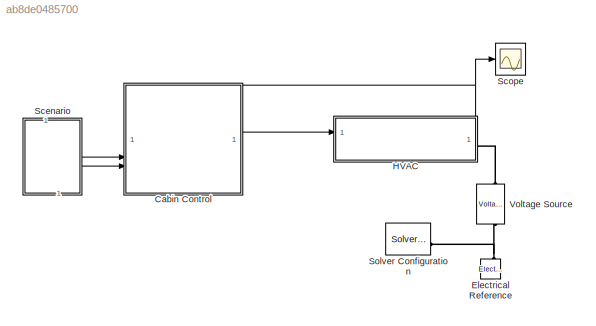
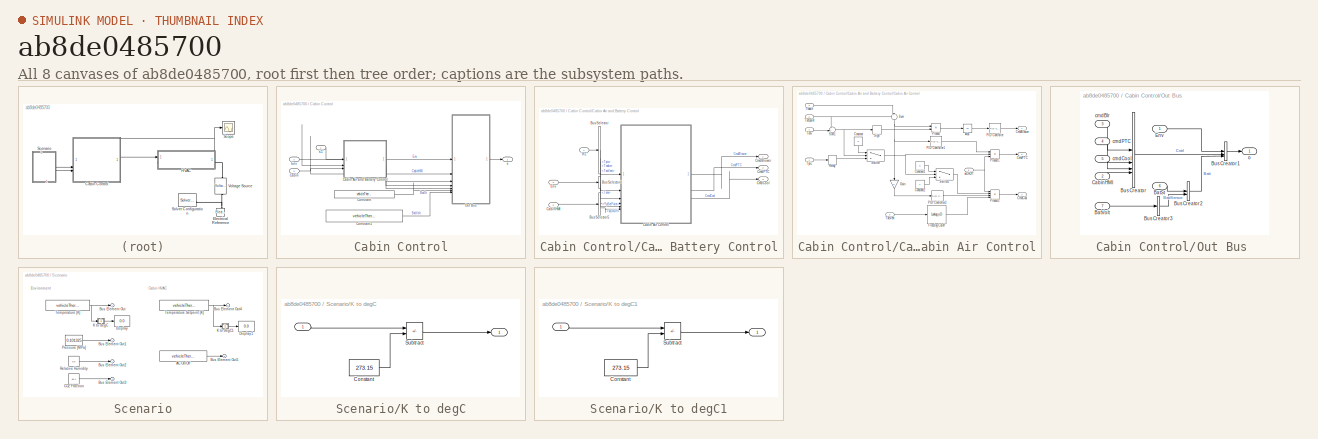
[diagram: thumbnail index - all 8 canvases of the model, root first then tree order]
MODEL slx_ab8de0485700
KIND model
CONFIG AbsTol = auto
CONFIG EnableMultiTasking = off
CONFIG FixedStep = auto
CONFIG MaxStep = auto
CONFIG MinStep = auto
CONFIG PreLoadFcn = % Load all parameters\nHVACTestHarnessParams\n
CONFIG RelTol = 1e-3
CONFIG SampleTimeConstraint = Unconstrained
CONFIG SolverName = daessc
CONFIG StartTime = 0
CONFIG StopTime = 50
BLOCK [SubSystem] Cabin Control
BLOCK [Inport] Cabin Control/Cabin
  Port = 3
BLOCK [SubSystem] Cabin Control/Cabin Air and Battery Control
BLOCK [BusSelector] Cabin Control/Cabin Air and Battery Control/Bus Selector
  OutputSignals = Tptc,Tcabin,TacVent
BLOCK [BusSelector] Cabin Control/Cabin Air and Battery Control/Bus Selector4
  OutputSignals = Tenv
BLOCK [BusSelector] Cabin Control/Cabin Air and Battery Control/Bus Selector5
  OutputSignals = TpSetPoint,acOnOff
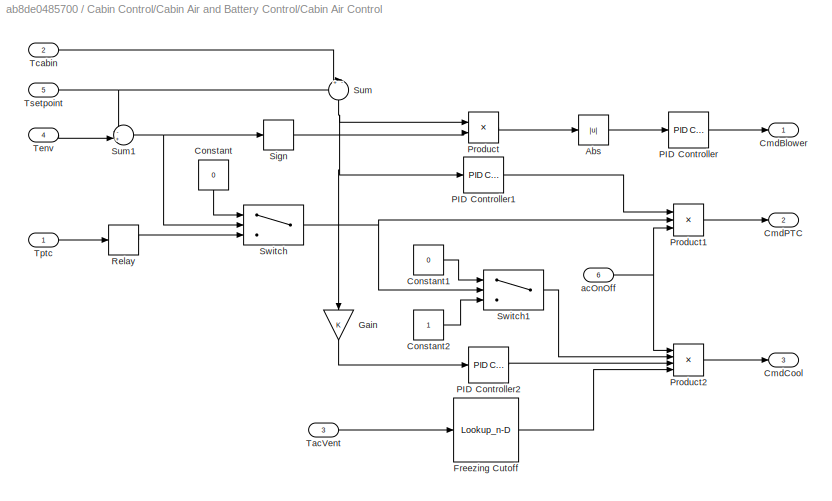
BLOCK [SubSystem] Cabin Control/Cabin Air and Battery Control/Cabin Air Control
BLOCK [Abs] Cabin Control/Cabin Air and Battery Control/Cabin Air Control/Abs
  SaturateOnIntegerOverflow = off
BLOCK [Outport] Cabin Control/Cabin Air and Battery Control/Cabin Air Control/CmdBlower
BLOCK [Outport] Cabin Control/Cabin Air and Battery Control/Cabin Air Control/CmdCool
  Port = 3
BLOCK [Outport] Cabin Control/Cabin Air and Battery Control/Cabin Air Control/CmdPTC
  Port = 2
BLOCK [Constant] Cabin Control/Cabin Air and Battery Control/Cabin Air Control/Constant
  NameLocation = right
  Value = 0
BLOCK [Constant] Cabin Control/Cabin Air and Battery Control/Cabin Air Control/Constant1
  NameLocation = top
  Value = 0
BLOCK [Constant] Cabin Control/Cabin Air and Battery Control/Cabin Air Control/Constant2
  NameLocation = top
BLOCK [Lookup_n-D] Cabin Control/Cabin Air and Battery Control/Cabin Air Control/Freezing Cutoff
  BeginIndexSearchUsingPreviousIndexResult = on
  BreakpointsForDimension1 = [5 7 12 15]+273.15
  IndexSearchMethod = Linear search
  InputPortMap = u0
  InternalRulePriority = Speed
  NumberOfTableDimensions = 1
  RndMeth = Simplest
  Table = [0 0 1 1]
BLOCK [Gain] Cabin Control/Cabin Air and Battery Control/Cabin Air Control/Gain
  NameLocation = left
BLOCK [Reference] Cabin Control/Cabin Air and Battery Control/Cabin Air Control/PID Controller  REF=slpidlib/PID Controller
  SourceBlock = slpidlib/PID Controller
  SourceType = PID 1dof
BLOCK [Reference] Cabin Control/Cabin Air and Battery Control/Cabin Air Control/PID Controller1  REF=slpidlib/PID Controller
  LibrarySourceBlock = simulink/Continuous/PID Controller
  SourceBlock = slpidlib/PID Controller
  SourceType = PID 1dof
BLOCK [Reference] Cabin Control/Cabin Air and Battery Control/Cabin Air Control/PID Controller2  REF=slpidlib/PID Controller
  LibrarySourceBlock = simulink/Continuous/PID Controller
  SourceBlock = slpidlib/PID Controller
  SourceType = PID 1dof
BLOCK [Product] Cabin Control/Cabin Air and Battery Control/Cabin Air Control/Product
BLOCK [Product] Cabin Control/Cabin Air and Battery Control/Cabin Air Control/Product1
  Inputs = 3
BLOCK [Product] Cabin Control/Cabin Air and Battery Control/Cabin Air Control/Product2
  Inputs = 4
BLOCK [Relay] Cabin Control/Cabin Air and Battery Control/Cabin Air Control/Relay
  OffOutputValue = 1
  OffSwitchValue = 35+273.15
  OnOutputValue = 0
  OnSwitchValue = 45+273.15
  ZeroCross = off
BLOCK [Signum] Cabin Control/Cabin Air and Battery Control/Cabin Air Control/Sign
BLOCK [Sum] Cabin Control/Cabin Air and Battery Control/Cabin Air Control/Sum
  Inputs = +-|
  NameLocation = right
BLOCK [Sum] Cabin Control/Cabin Air and Battery Control/Cabin Air Control/Sum1
  Inputs = -+|
BLOCK [Switch] Cabin Control/Cabin Air and Battery Control/Cabin Air Control/Switch
  InputSameDT = off
  SaturateOnIntegerOverflow = off
BLOCK [Switch] Cabin Control/Cabin Air and Battery Control/Cabin Air Control/Switch1
  InputSameDT = off
  SaturateOnIntegerOverflow = off
  Threshold = 0.5
BLOCK [Inport] Cabin Control/Cabin Air and Battery Control/Cabin Air Control/TacVent
  Port = 3
BLOCK [Inport] Cabin Control/Cabin Air and Battery Control/Cabin Air Control/Tcabin
  Port = 2
BLOCK [Inport] Cabin Control/Cabin Air and Battery Control/Cabin Air Control/Tenv
  Port = 4
BLOCK [Inport] Cabin Control/Cabin Air and Battery Control/Cabin Air Control/Tptc
BLOCK [Inport] Cabin Control/Cabin Air and Battery Control/Cabin Air Control/Tsetpoint
  Port = 5
BLOCK [Inport] Cabin Control/Cabin Air and Battery Control/Cabin Air Control/acOnOff
  Port = 6
BLOCK [Inport] Cabin Control/Cabin Air and Battery Control/CabinHMI
  Port = 3
BLOCK [Outport] Cabin Control/Cabin Air and Battery Control/CmdBlower
BLOCK [Outport] Cabin Control/Cabin Air and Battery Control/CmdCool
  Port = 3
BLOCK [Outport] Cabin Control/Cabin Air and Battery Control/CmdPTC
  Port = 2
BLOCK [Inport] Cabin Control/Cabin Air and Battery Control/Env
  Port = 2
BLOCK [Inport] Cabin Control/Cabin Air and Battery Control/In1
BLOCK [Constant] Cabin Control/Constant
  Value = vehicleThermal.cabin_SOC
BLOCK [Constant] Cabin Control/Constant1
  Value = vehicleThermal.cabin_battVoltage
BLOCK [Inport] Cabin Control/Env
  NameLocation = top
  Port = 2
BLOCK [SubSystem] Cabin Control/Out Bus 
BLOCK [Inport] Cabin Control/Out Bus /BatSt
  NameLocation = top
  Port = 6
BLOCK [Inport] Cabin Control/Out Bus /BatVolt
  Port = 7
BLOCK [BusCreator] Cabin Control/Out Bus /Bus Creator
  DisplayOption = bar
  InheritFromInputs = on
  Inputs = 4
BLOCK [BusCreator] Cabin Control/Out Bus /Bus Creator1
  DisplayOption = bar
  InheritFromInputs = on
  Inputs = 3
BLOCK [BusCreator] Cabin Control/Out Bus /Bus Creator2
  DisplayOption = bar
  InheritFromInputs = on
  Inputs = 2
BLOCK [BusCreator] Cabin Control/Out Bus /Bus Creator3
  DisplayOption = bar
  InheritFromInputs = on
  Inputs = 1
BLOCK [Inport] Cabin Control/Out Bus /CabinHMI
  Port = 2
BLOCK [Inport] Cabin Control/Out Bus /Env
  NameLocation = top
BLOCK [Inport] Cabin Control/Out Bus /cmdBlr
  Port = 3
BLOCK [Inport] Cabin Control/Out Bus /cmdCool
  Port = 5
BLOCK [Inport] Cabin Control/Out Bus /cmdPTC
  Port = 4
BLOCK [Outport] Cabin Control/Out Bus /o
BLOCK [Outport] Cabin Control/s
BLOCK [Inport] Cabin Control/s1
  NameLocation = top
BLOCK [Reference] Electrical Reference  REF=fl_lib/Electrical/Electrical Elements/Electrical Reference
  NameLocation = right
  SourceBlock = fl_lib/Electrical/Electrical Elements/Electrical Reference
  SourceType = Electrical Reference
BLOCK [SubSystem] HVAC
  PortSchema = {"entries":[{"content":{"sides":[{"content":{"connectorIds":["In1"]},"type":"ConnectorPlacement.EquallySpacedRectSide","uuid":"1deba8c1-465f-4d58-bbc9-ab0d1db98c17"},{"content":{"connectorIds":["LConn1"],"side":"RIGHT"},"type":"ConnectorPlacement.EquallySpacedRectSide","uuid":"8fbb44ad-e027-4231-94f3-f26435b888cd"},{"content":{"connectorIds":["Out1"],"side":"TOP"},"type":"ConnectorPlacement.Equall...<+374ch>
  ReferencedSubsystem = HVACEmpiricalRef
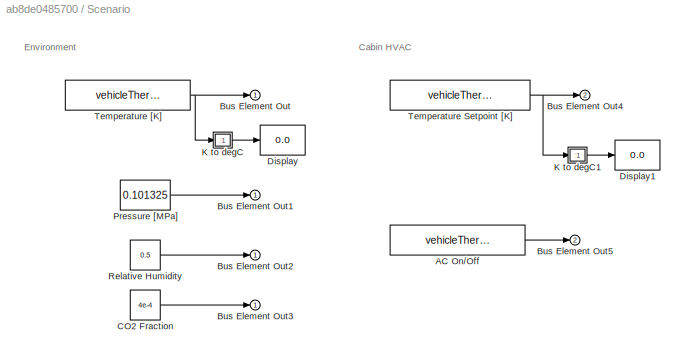
BLOCK [SubSystem] Scenario
  NameLocation = left
  PortSchema = {"entries":[{"content":{"sides":[{"content":{"connectorIds":[]},"type":"ConnectorPlacement.EquallySpacedRectSide","uuid":"eb8d1f37-8208-4a35-a227-ee3e7712aac0"},{"content":{"connectorIds":[],"side":"RIGHT"},"type":"ConnectorPlacement.EquallySpacedRectSide","uuid":"04c1ce39-a668-46a3-bb9a-590d9fa6d188"},{"content":{"connectorIds":["Out1","Out2"],"side":"TOP"},"type":"ConnectorPlacement.EquallySpace...<+242ch>
  Tag = cold weather
BLOCK [Constant] Scenario/AC On//Off
  Value = vehicleThermal.AConoff
BLOCK [Outport] Scenario/Bus Element Out
BLOCK [Outport] Scenario/Bus Element Out1
BLOCK [Outport] Scenario/Bus Element Out2
BLOCK [Outport] Scenario/Bus Element Out3
BLOCK [Outport] Scenario/Bus Element Out4
  Port = 2
BLOCK [Outport] Scenario/Bus Element Out5
  Port = 2
BLOCK [Constant] Scenario/CO2 Fraction
  Value = 4e-4
BLOCK [Display] Scenario/Display
  Decimation = 1
BLOCK [Display] Scenario/Display1
  Decimation = 1
BLOCK [SubSystem] Scenario/K to degC
BLOCK [Inport] Scenario/K to degC/ 
BLOCK [Outport] Scenario/K to degC/  
BLOCK [Constant] Scenario/K to degC/Constant
  Value = 273.15
BLOCK [Sum] Scenario/K to degC/Subtract
  IconShape = rectangular
  Inputs = +-
BLOCK [SubSystem] Scenario/K to degC1
BLOCK [Inport] Scenario/K to degC1/ 
BLOCK [Outport] Scenario/K to degC1/  
BLOCK [Constant] Scenario/K to degC1/Constant
  Value = 273.15
BLOCK [Sum] Scenario/K to degC1/Subtract
  IconShape = rectangular
  Inputs = +-
BLOCK [Constant] Scenario/Pressure [MPa]
  Value = 0.101325
BLOCK [Constant] Scenario/Relative Humidity
  Value = 0.5
BLOCK [Constant] Scenario/Temperature Setpoint [K]
  Value = vehicleThermal.CabinSpTp
BLOCK [Constant] Scenario/Temperature [K]
  Value = vehicleThermal.ambient
BLOCK [Scope] Scope
  Floating = off
  NumInputPorts = 1
  ScopeSpecificationString = Simulink.scopes.TimeScopeBlockCfg('CurrentConfiguration', extmgr.ConfigurationSet(extmgr.Configuration('Core','General UI',true),extmgr.Configuration('Core','Source UI',true),extmgr.Configuration('Sources','WiredSimulink',true,'DataLoggingVariableName','ScopeData1'),extmgr.Configuration('Visuals','Time Domain',true,'SerializedDisplays',{struct('MinYLimReal','270.06139','MaxYLimReal','309.36769','Y...<+1538ch>
BLOCK [Reference] Solver Configuration  REF=nesl_utility/Solver
Configuration
  SourceBlock = nesl_utility/Solver\nConfiguration
  SourceType = Solver\nConfiguration
BLOCK [Reference] Voltage Source  REF=ee_lib/Sources/Voltage Source
  NameLocation = right
  SourceBlock = ee_lib/Sources/Voltage Source
  SourceType = Voltage Source
ANNOTATION Scenario: Cabin HVAC
ANNOTATION Scenario: Environment
LINE Cabin Control/Cabin Air and Battery Control/Bus Selector4:1 -> Cabin Control/Cabin Air and Battery Control/Cabin Air Control:4
LINE Cabin Control/Cabin Air and Battery Control/Bus Selector5:1 -> Cabin Control/Cabin Air and Battery Control/Cabin Air Control:5
LINE Cabin Control/Cabin Air and Battery Control/Bus Selector5:2 -> Cabin Control/Cabin Air and Battery Control/Cabin Air Control:6
LINE Cabin Control/Cabin Air and Battery Control/Bus Selector:1 -> Cabin Control/Cabin Air and Battery Control/Cabin Air Control:1
LINE Cabin Control/Cabin Air and Battery Control/Bus Selector:2 -> Cabin Control/Cabin Air and Battery Control/Cabin Air Control:2
LINE Cabin Control/Cabin Air and Battery Control/Bus Selector:3 -> Cabin Control/Cabin Air and Battery Control/Cabin Air Control:3
LINE Cabin Control/Cabin Air and Battery Control/Cabin Air Control/Abs:1 -> Cabin Control/Cabin Air and Battery Control/Cabin Air Control/PID Controller:1
LINE Cabin Control/Cabin Air and Battery Control/Cabin Air Control/Constant1:1 -> Cabin Control/Cabin Air and Battery Control/Cabin Air Control/Switch1:1
LINE Cabin Control/Cabin Air and Battery Control/Cabin Air Control/Constant2:1 -> Cabin Control/Cabin Air and Battery Control/Cabin Air Control/Switch1:3
LINE Cabin Control/Cabin Air and Battery Control/Cabin Air Control/Constant:1 -> Cabin Control/Cabin Air and Battery Control/Cabin Air Control/Switch:1
LINE Cabin Control/Cabin Air and Battery Control/Cabin Air Control/Freezing Cutoff:1 -> Cabin Control/Cabin Air and Battery Control/Cabin Air Control/Product2:4
LINE Cabin Control/Cabin Air and Battery Control/Cabin Air Control/Gain:1 -> Cabin Control/Cabin Air and Battery Control/Cabin Air Control/PID Controller2:1
LINE Cabin Control/Cabin Air and Battery Control/Cabin Air Control/PID Controller1:1 -> Cabin Control/Cabin Air and Battery Control/Cabin Air Control/Product1:1
LINE Cabin Control/Cabin Air and Battery Control/Cabin Air Control/PID Controller2:1 -> Cabin Control/Cabin Air and Battery Control/Cabin Air Control/Product2:3
LINE Cabin Control/Cabin Air and Battery Control/Cabin Air Control/PID Controller:1 -> Cabin Control/Cabin Air and Battery Control/Cabin Air Control/CmdBlower:1
LINE Cabin Control/Cabin Air and Battery Control/Cabin Air Control/Product1:1 -> Cabin Control/Cabin Air and Battery Control/Cabin Air Control/CmdPTC:1
LINE Cabin Control/Cabin Air and Battery Control/Cabin Air Control/Product2:1 -> Cabin Control/Cabin Air and Battery Control/Cabin Air Control/CmdCool:1
LINE Cabin Control/Cabin Air and Battery Control/Cabin Air Control/Product:1 -> Cabin Control/Cabin Air and Battery Control/Cabin Air Control/Abs:1
LINE Cabin Control/Cabin Air and Battery Control/Cabin Air Control/Relay:1 -> Cabin Control/Cabin Air and Battery Control/Cabin Air Control/Switch:3
LINE Cabin Control/Cabin Air and Battery Control/Cabin Air Control/Sign:1 -> Cabin Control/Cabin Air and Battery Control/Cabin Air Control/Product:2
NET Cabin Control/Cabin Air and Battery Control/Cabin Air Control/Sum1:1 -> Cabin Control/Cabin Air and Battery Control/Cabin Air Control/Sign:1, Cabin Control/Cabin Air and Battery Control/Cabin Air Control/Switch:2
NET Cabin Control/Cabin Air and Battery Control/Cabin Air Control/Sum:1 -> Cabin Control/Cabin Air and Battery Control/Cabin Air Control/Gain:1, Cabin Control/Cabin Air and Battery Control/Cabin Air Control/PID Controller1:1, Cabin Control/Cabin Air and Battery Control/Cabin Air Control/Product:1
LINE Cabin Control/Cabin Air and Battery Control/Cabin Air Control/Switch1:1 -> Cabin Control/Cabin Air and Battery Control/Cabin Air Control/Product2:2
NET Cabin Control/Cabin Air and Battery Control/Cabin Air Control/Switch:1 -> Cabin Control/Cabin Air and Battery Control/Cabin Air Control/Product1:2, Cabin Control/Cabin Air and Battery Control/Cabin Air Control/Switch1:2
LINE Cabin Control/Cabin Air and Battery Control/Cabin Air Control/TacVent:1 -> Cabin Control/Cabin Air and Battery Control/Cabin Air Control/Freezing Cutoff:1
LINE Cabin Control/Cabin Air and Battery Control/Cabin Air Control/Tcabin:1 -> Cabin Control/Cabin Air and Battery Control/Cabin Air Control/Sum:2
LINE Cabin Control/Cabin Air and Battery Control/Cabin Air Control/Tenv:1 -> Cabin Control/Cabin Air and Battery Control/Cabin Air Control/Sum1:2
LINE Cabin Control/Cabin Air and Battery Control/Cabin Air Control/Tptc:1 -> Cabin Control/Cabin Air and Battery Control/Cabin Air Control/Relay:1
NET Cabin Control/Cabin Air and Battery Control/Cabin Air Control/Tsetpoint:1 -> Cabin Control/Cabin Air and Battery Control/Cabin Air Control/Sum1:1, Cabin Control/Cabin Air and Battery Control/Cabin Air Control/Sum:1
NET Cabin Control/Cabin Air and Battery Control/Cabin Air Control/acOnOff:1 -> Cabin Control/Cabin Air and Battery Control/Cabin Air Control/Product1:3, Cabin Control/Cabin Air and Battery Control/Cabin Air Control/Product2:1
LINE Cabin Control/Cabin Air and Battery Control/Cabin Air Control:1 -> Cabin Control/Cabin Air and Battery Control/CmdBlower:1
LINE Cabin Control/Cabin Air and Battery Control/Cabin Air Control:2 -> Cabin Control/Cabin Air and Battery Control/CmdPTC:1
LINE Cabin Control/Cabin Air and Battery Control/Cabin Air Control:3 -> Cabin Control/Cabin Air and Battery Control/CmdCool:1
LINE Cabin Control/Cabin Air and Battery Control/CabinHMI:1 -> Cabin Control/Cabin Air and Battery Control/Bus Selector5:1
LINE Cabin Control/Cabin Air and Battery Control/Env:1 -> Cabin Control/Cabin Air and Battery Control/Bus Selector4:1
LINE Cabin Control/Cabin Air and Battery Control/In1:1 -> Cabin Control/Cabin Air and Battery Control/Bus Selector:1
LINE Cabin Control/Cabin Air and Battery Control:1 -> Cabin Control/Out Bus :3
LINE Cabin Control/Cabin Air and Battery Control:2 -> Cabin Control/Out Bus :4
LINE Cabin Control/Cabin Air and Battery Control:3 -> Cabin Control/Out Bus :5
NET Cabin Control/Cabin:1 -> Cabin Control/Cabin Air and Battery Control:3, Cabin Control/Out Bus :2
LINE Cabin Control/Constant1:1 -> Cabin Control/Out Bus :7
LINE Cabin Control/Constant:1 -> Cabin Control/Out Bus :6
NET Cabin Control/Env:1 -> Cabin Control/Cabin Air and Battery Control:2, Cabin Control/Out Bus :1
LINE Cabin Control/Out Bus /BatSt:1 -> Cabin Control/Out Bus /Bus Creator2:1
LINE Cabin Control/Out Bus /BatVolt:1 -> Cabin Control/Out Bus /Bus Creator3:1
LINE Cabin Control/Out Bus /Bus Creator1:1 -> Cabin Control/Out Bus /o:1
LINE Cabin Control/Out Bus /Bus Creator2:1 -> Cabin Control/Out Bus /Bus Creator1:3
LINE Cabin Control/Out Bus /Bus Creator3:1 -> Cabin Control/Out Bus /Bus Creator2:2
LINE Cabin Control/Out Bus /Bus Creator:1 -> Cabin Control/Out Bus /Bus Creator1:2
LINE Cabin Control/Out Bus /CabinHMI:1 -> Cabin Control/Out Bus /Bus Creator:4
LINE Cabin Control/Out Bus /Env:1 -> Cabin Control/Out Bus /Bus Creator1:1
LINE Cabin Control/Out Bus /cmdBlr:1 -> Cabin Control/Out Bus /Bus Creator:1
LINE Cabin Control/Out Bus /cmdCool:1 -> Cabin Control/Out Bus /Bus Creator:3
LINE Cabin Control/Out Bus /cmdPTC:1 -> Cabin Control/Out Bus /Bus Creator:2
LINE Cabin Control/Out Bus :1 -> Cabin Control/s:1
LINE Cabin Control/s1:1 -> Cabin Control/Cabin Air and Battery Control:1
LINE Cabin Control:1 -> HVAC:1
NET HVAC:1 -> Cabin Control:1, Scope:1
LINE Scenario/AC On//Off:1 -> Scenario/Bus Element Out5:1
LINE Scenario/CO2 Fraction:1 -> Scenario/Bus Element Out3:1
LINE Scenario/K to degC/ :1 -> Scenario/K to degC/Subtract:1
LINE Scenario/K to degC/Constant:1 -> Scenario/K to degC/Subtract:2
LINE Scenario/K to degC/Subtract:1 -> Scenario/K to degC/  :1
LINE Scenario/K to degC1/ :1 -> Scenario/K to degC1/Subtract:1
LINE Scenario/K to degC1/Constant:1 -> Scenario/K to degC1/Subtract:2
LINE Scenario/K to degC1/Subtract:1 -> Scenario/K to degC1/  :1
LINE Scenario/K to degC1:1 -> Scenario/Display1:1
LINE Scenario/K to degC:1 -> Scenario/Display:1
LINE Scenario/Pressure [MPa]:1 -> Scenario/Bus Element Out1:1
LINE Scenario/Relative Humidity:1 -> Scenario/Bus Element Out2:1
NET Scenario/Temperature Setpoint [K]:1 -> Scenario/Bus Element Out4:1, Scenario/K to degC1:1
NET Scenario/Temperature [K]:1 -> Scenario/Bus Element Out:1, Scenario/K to degC:1
LINE Scenario:1 -> Cabin Control:2
LINE Scenario:2 -> Cabin Control:3
PNET net1: Electrical Reference:LConn1 -- Solver Configuration:RConn1 -- Voltage Source:RConn1
PLINE HVAC:LConn1 -- Voltage Source:LConn1
note: NET lines group one-source signal fan-out (src -> all destinations, sorted); 1:1 wires keep LINE; PNET lines group multi-terminal physical nets as a canonical sorted terminal list (undirected conserving connections); 2-terminal nets keep the pairwise PLINE form
